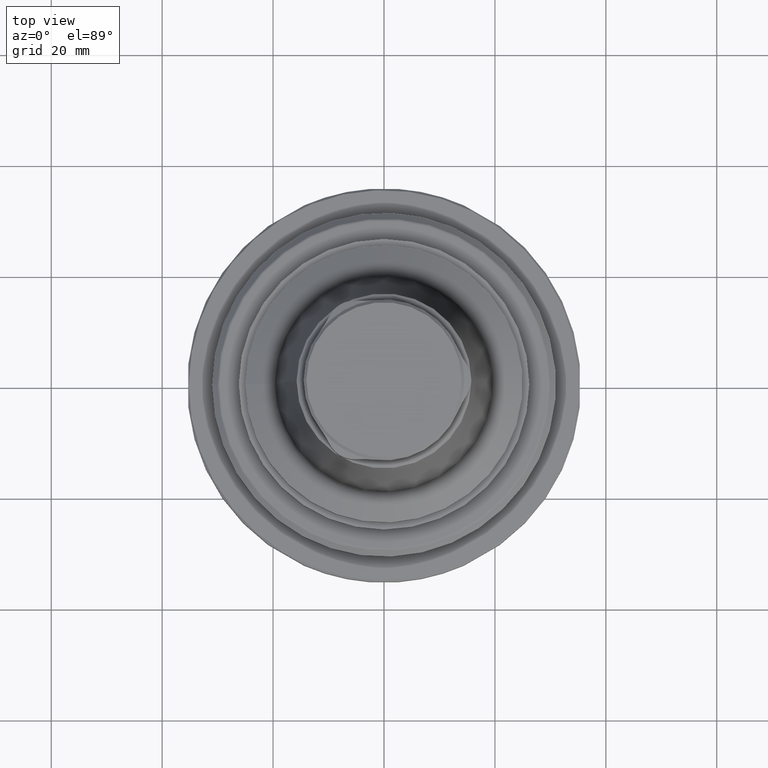
[diagram: clean part render]
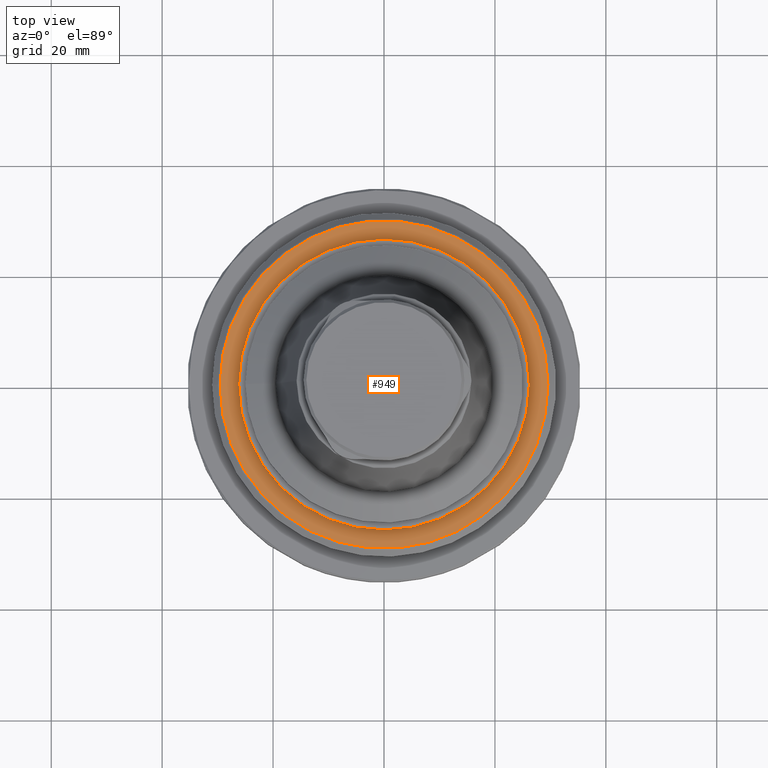
[diagram: same view with one face highlighted and labeled with its STEP entity id]
A machine part, top view. The second image highlights one B-rep face of the part: STEP entity #949.
In plain terms, the highlighted planar face has unit normal (-0, -0, -1).
Its self-contained STEP definition (entity closure, byte-faithful):
#392=ORIENTED_EDGE('',*,*,#481,.F.);
#393=ORIENTED_EDGE('',*,*,#532,.F.);
#481=EDGE_CURVE('',#588,#588,#659,.T.);
#532=EDGE_CURVE('',#623,#623,#678,.T.);
#588=VERTEX_POINT('',#1637);
#623=VERTEX_POINT('',#1791);
#659=CIRCLE('',#1035,26.2);
#678=CIRCLE('',#1074,29.5524710292422);
#759=EDGE_LOOP('',(#392));
#760=EDGE_LOOP('',(#393));
#855=FACE_BOUND('',#759,.T.);
#856=FACE_BOUND('',#760,.T.);
#893=PLANE('',#1073);
#949=ADVANCED_FACE('',(#855,#856),#893,.F.);
#1035=AXIS2_PLACEMENT_3D('',#1636,#1229,#1230);
#1073=AXIS2_PLACEMENT_3D('',#1789,#1321,#1322);
#1074=AXIS2_PLACEMENT_3D('',#1790,#1323,#1324);
#1229=DIRECTION('',(5.5264198129461E-16,5.34134317477693E-17,1.));
#1230=DIRECTION('',(1.,-9.77164313006873E-16,-5.58279830278911E-16));
#1321=DIRECTION('',(-5.47430718319515E-16,-9.52839907700963E-18,-1.));
#1322=DIRECTION('',(-1.,8.32667268468868E-16,5.47430716006892E-16));
#1323=DIRECTION('',(-5.47430718319515E-16,-9.52839907700963E-18,-1.));
#1324=DIRECTION('',(-1.,8.32667268468868E-16,5.47430716006892E-16));
#1636=CARTESIAN_POINT('',(-8.02869289039323E-14,-9.81483671983164E-14,5.50000000000001));
#1637=CARTESIAN_POINT('',(26.1999999999999,-1.23750072199096E-13,5.49999999999999));
#1789=CARTESIAN_POINT('',(-8.46434197697131E-14,-9.81026005811959E-14,5.50000000000001));
#1790=CARTESIAN_POINT('',(-8.46434197697131E-14,-9.81026005811959E-14,5.50000000000001));
#1791=CARTESIAN_POINT('',(-29.5524710292423,-7.34952252527714E-14,5.50000000000002));